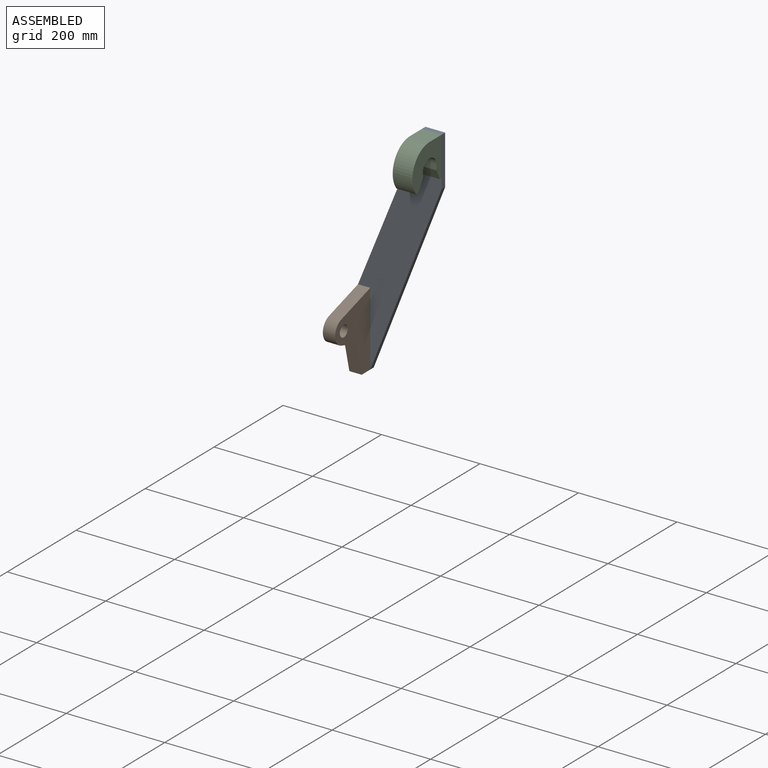
[diagram: assembled view]
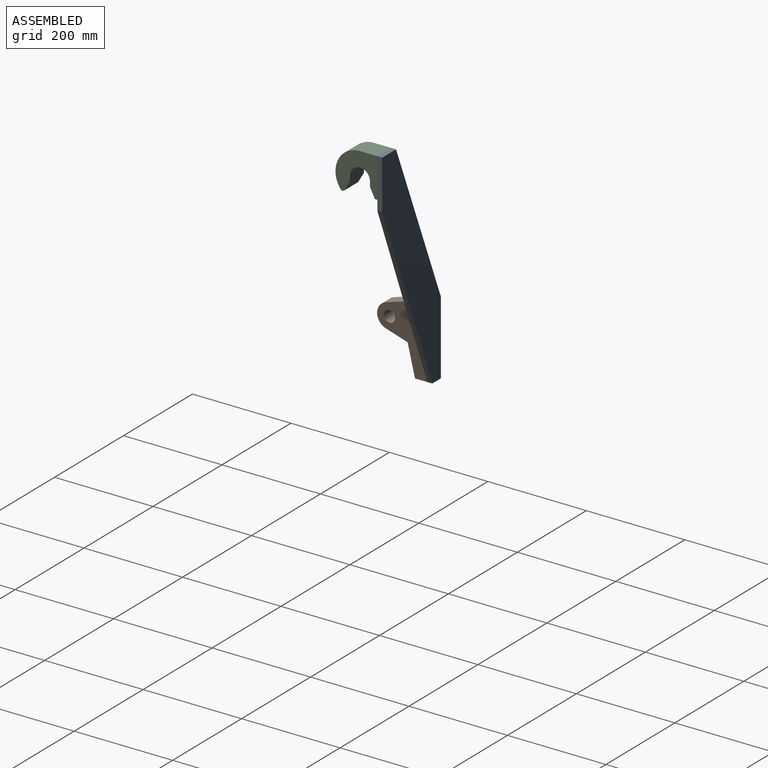
[diagram: assembled view, second angle]
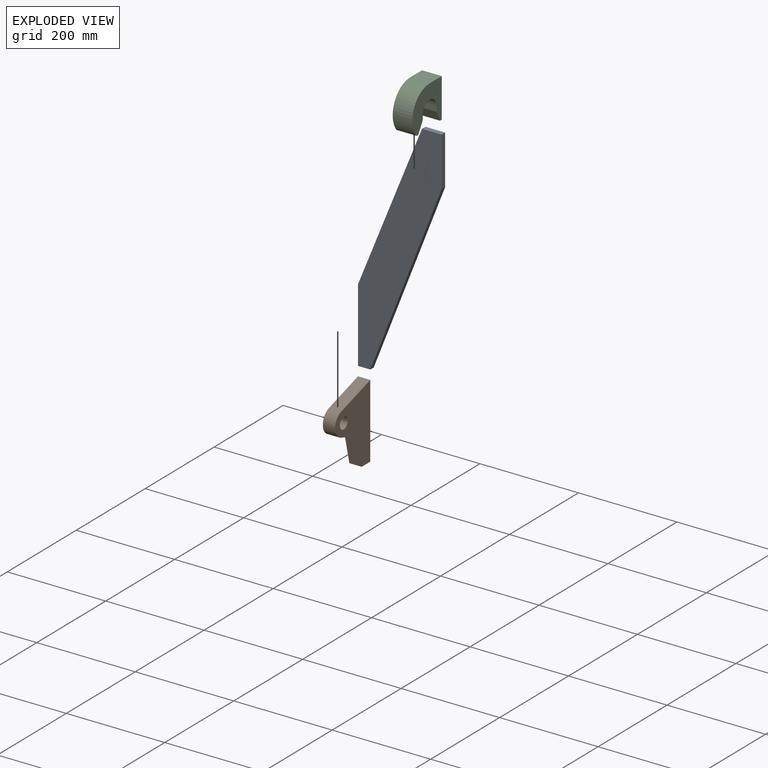
[diagram: exploded view]
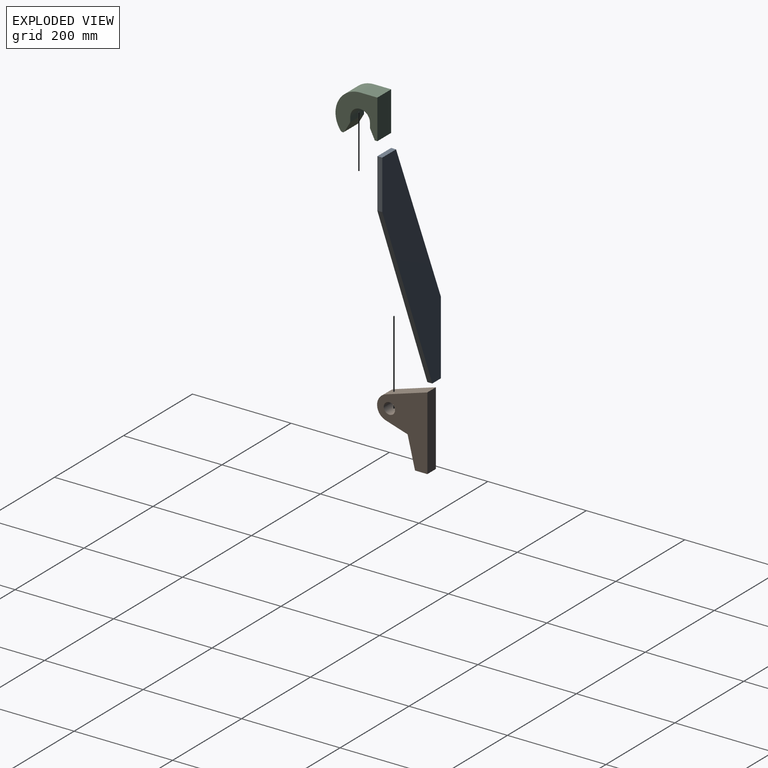
[diagram: exploded view, second angle]
ASSEMBLY  parts=3 mates=2
PART A: 8 faces, bbox 170x10x470 mm
  f0: plane 150x10mm, normal (-1,0,0), area 1500mm2, adj f1,f5,f6,f7
  f1: plane 25x10mm, normal (0,0,-1), area 250mm2, adj f0,f2,f6,f7
  f2: plane 370x145mm, normal (0.93,0,-0.36), area 3974mm2, adj f1,f3,f6,f7
  f3: plane 100x10mm, normal (1,0,0), area 1000mm2, adj f2,f4,f6,f7
  f4: plane 40x10mm, normal (0,0,1), area 400mm2, adj f3,f5,f6,f7
  f5: plane 320x130mm, normal (-0.93,0,0.38), area 3454mm2, adj f0,f4,f6,f7
  f6: plane 470x170mm, normal (0,1,0), area 32275mm2, adj f0,f1,f2,f3,f4,f5
  f7: plane 470x170mm, normal (0,-1,0), area 32275mm2, adj f0,f1,f2,f3,f4,f5
PART B: 9 faces, bbox 102x25x150 mm
  f0: plane 150x25mm, normal (1,0,0), area 3750mm2, adj f1,f6,f7,f8
  f1: plane 84.39x26.12mm, normal (-0.3,0,0.96), area 2208.5mm2, adj f0,f2,f7,f8
  f2: cylinder r=25mm len=47.77mm, axis (0,-1,0), area 1588.3mm2, adj f1,f3,f7,f8
  f3: plane 44.39x25mm, normal (-0.3,0,-0.96), area 1161.7mm2, adj f2,f4,f7,f8
  f4: plane 62.38x25mm, normal (-0.97,0,-0.23), area 1603.9mm2, adj f3,f6,f7,f8
  f5: cylinder r=11.5mm len=25mm, axis (0,-1,0), area 1806.4mm2, adj f7,f8
  f6: plane 25x25mm, normal (0,0,-1), area 625mm2, adj f0,f4,f7,f8
  f7: plane 150x102mm, normal (0,1,0), area 8216.9mm2, adj f0,f1,f2,f3,f4,f5,f6
  f8: plane 150x102mm, normal (0,-1,0), area 8216.9mm2, adj f0,f1,f2,f3,f4,f5,f6
PART C: 12 faces, bbox 85x40x82.3 mm
  f0: plane 40x10mm, normal (1,0,0), area 400mm2, adj f1,f8,f9,f10
  f1: cylinder r=20mm len=40mm, axis (0,-1,0), area 2513.3mm2, adj f0,f2,f9,f10
  f2: plane 40x10mm, normal (-1,0,0), area 400mm2, adj f1,f3,f9,f10
  f3: plane 40x20mm, normal (-0.89,0,-0.45), area 894.4mm2, adj f2,f4,f9,f10
  f4: plane 40x5mm, normal (0,0,-1), area 200mm2, adj f3,f5,f9,f10
  f5: plane 80x40mm, normal (1,0,0), area 3200mm2, adj f4,f6,f9,f10
  f6: plane 40x35mm, normal (0,0,1), area 1400mm2, adj f5,f7,f9,f10
  f7: cylinder r=50mm len=80.34mm, axis (0,-1,0), area 4445.8mm2, adj f6,f9,f10,f11
  f8: plane 40x19.81mm, normal (0.87,0,-0.5), area 914.9mm2, adj f0,f9,f10,f11
  f9: plane 85x82.31mm, normal (0,1,0), area 4137.8mm2, adj f0,f1,f2,f3,f4,f5,f6,f7
  f10: plane 85x82.31mm, normal (0,-1,0), area 4137.8mm2, adj f0,f1,f2,f3,f4,f5,f6,f7
  f11: cylinder r=5mm len=40mm, axis (0,-1,0), area 393.2mm2, adj f7,f8,f9,f10
PLACE A t=(-84.5,-4.35,-234.45)mm fixed
PLACE B rot(axis=(0,0,1),90deg) t=(-59.5,-81.35,-134.45)mm
PLACE C rot(axis=(0,0,1),90deg) t=(85.5,-39.35,185.55)mm
MATE fastened B.f6 <-> A.f1  axis (0,0,-1) through (-72,-4.35,-234.45)mm
MATE fastened C.f6 <-> A.f4  axis (0,0,1) through (65.5,-4.35,235.55)mm
